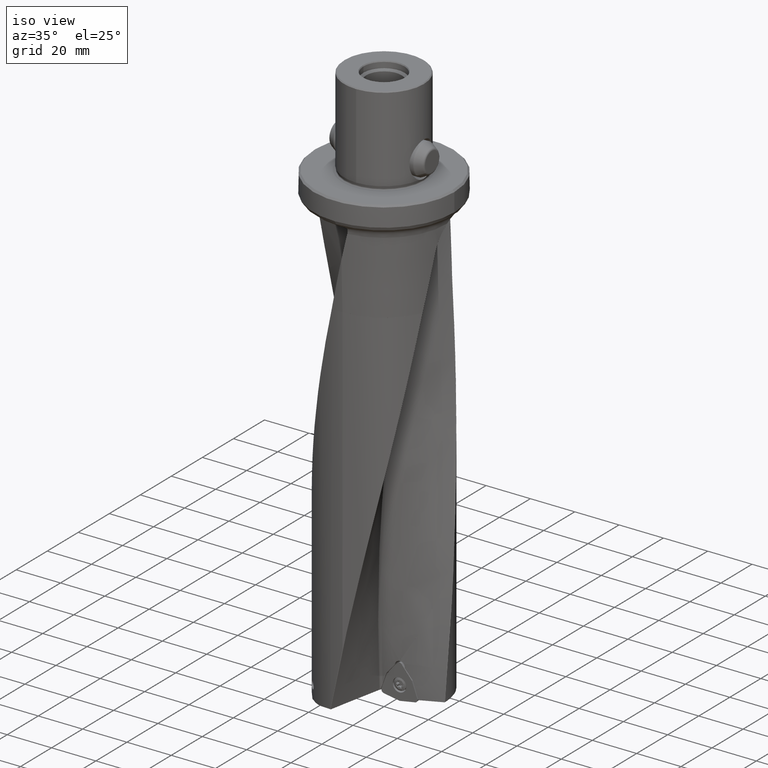
[diagram: clean part render]
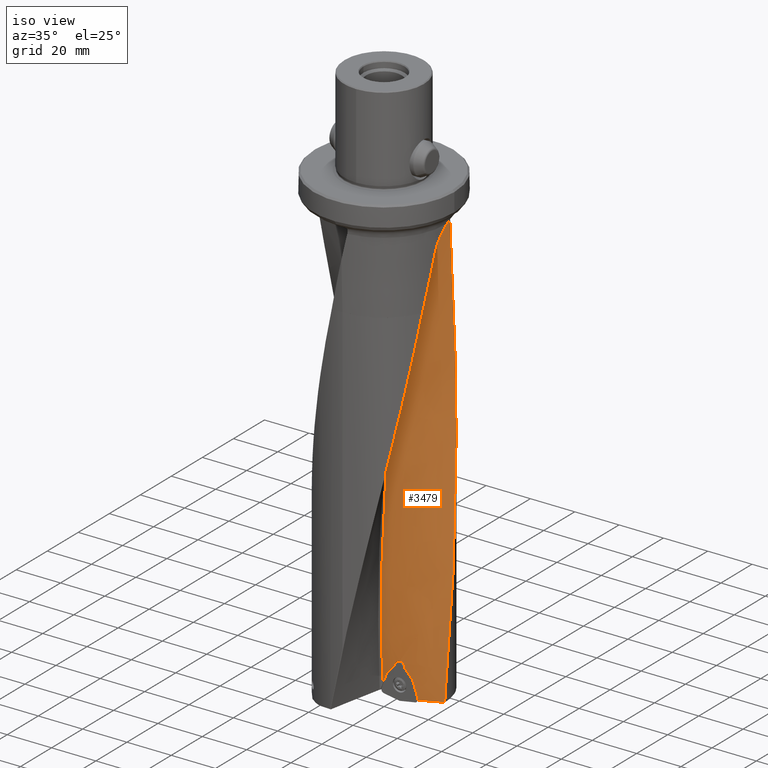
[diagram: same view with one face highlighted and labeled with its STEP entity id]
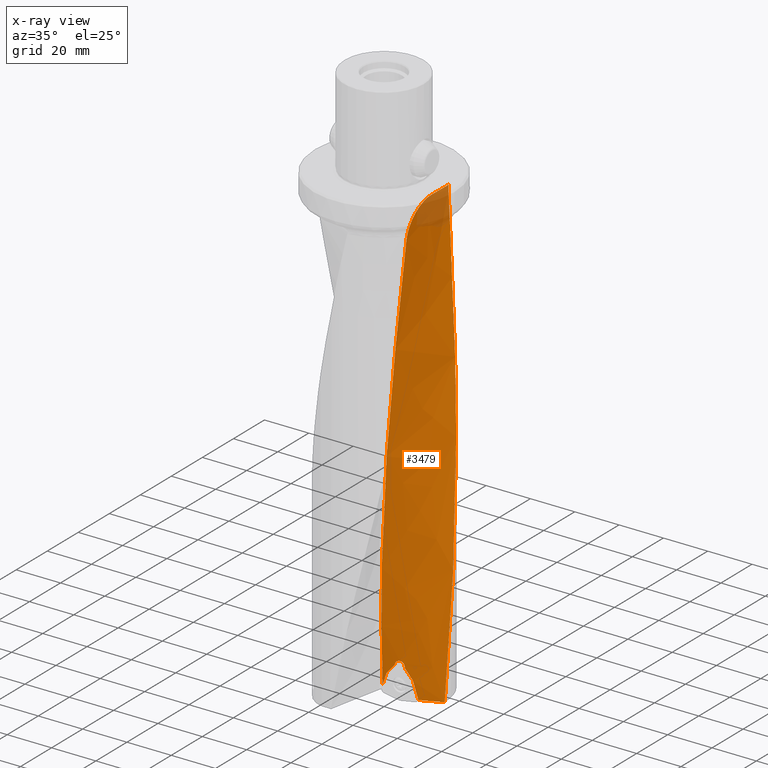
[diagram: x-ray of the same camera — body ghosted, the highlighted face saturated]
A machine part, iso view. The second image highlights one B-rep face of the part: STEP entity #3479.
The next image is the same camera in x-ray: the body ghosted, the highlighted face saturated — about 3% of this face is hidden behind the body in this view.
In plain terms, the highlighted face is a freeform B-spline surface patch.
Its self-contained STEP definition (entity closure, byte-faithful):
#2027=EDGE_CURVE('NONE',#3021,#3609,#5714,.T.);
#2069=VERTEX_POINT('NONE',#5761);
#2179=EDGE_CURVE('NONE',#2489,#2305,#5881,.T.);
#2181=EDGE_CURVE('NONE',#3959,#4489,#5883,.F.);
#2269=VERTEX_POINT('NONE',#5982);
#2271=VERTEX_POINT('NONE',#5984);
#2281=EDGE_CURVE('NONE',#2271,#2269,#5996,.T.);
#2289=EDGE_CURVE('NONE',#3387,#4959,#6005,.T.);
#2305=VERTEX_POINT('NONE',#6022);
#2405=VERTEX_POINT('NONE',#6135);
#2419=EDGE_CURVE('NONE',#4801,#4399,#6150,.T.);
#2489=VERTEX_POINT('NONE',#6230);
#2563=EDGE_CURVE('NONE',#2305,#3387,#6312,.T.);
#2597=VERTEX_POINT('NONE',#6348);
#3021=VERTEX_POINT('NONE',#6819);
#3283=EDGE_CURVE('NONE',#3021,#2597,#7107,.F.);
#3387=VERTEX_POINT('NONE',#7228);
#3479=ADVANCED_FACE('NONE',(#7331),#7332,.T.);
#3513=EDGE_CURVE('NONE',#4399,#5485,#7369,.T.);
#3609=VERTEX_POINT('NONE',#7476);
#3959=VERTEX_POINT('NONE',#7871);
#3997=EDGE_CURVE('NONE',#2069,#3959,#7916,.F.);
#4065=EDGE_CURVE('NONE',#4959,#2271,#7987,.T.);
#4399=VERTEX_POINT('NONE',#8359);
#4489=VERTEX_POINT('NONE',#8461);
#4653=EDGE_CURVE('NONE',#5485,#3609,#8641,.T.);
#4801=VERTEX_POINT('NONE',#8803);
#4887=EDGE_CURVE('NONE',#2405,#4801,#8892,.T.);
#4929=EDGE_CURVE('NONE',#5523,#2489,#8938,.T.);
#4959=VERTEX_POINT('NONE',#8971);
#5071=EDGE_CURVE('NONE',#2597,#2069,#9098,.F.);
#5183=EDGE_CURVE('NONE',#2269,#2405,#9216,.T.);
#5455=EDGE_CURVE('NONE',#4489,#5523,#9511,.T.);
#5485=VERTEX_POINT('NONE',#9545);
#5523=VERTEX_POINT('NONE',#9586);
#5714=B_SPLINE_CURVE_WITH_KNOTS('',3,(#9915,#9916,#9917,#9918),.UNSPECIFIED.,.F.,.F.,(4,4),(0.0,1.0),.UNSPECIFIED.);
#5761=CARTESIAN_POINT('',(11.0833075674687,25.9496007517363,-13.1441124296122));
#5881=B_SPLINE_CURVE_WITH_KNOTS('',3,(#12124,#12125,#12126,#12127),.UNSPECIFIED.,.F.,.F.,(4,4),(-7.908870839498,-0.0),.UNSPECIFIED.);
#5883=B_SPLINE_CURVE_WITH_KNOTS('',3,(#12130,#12131,#12132,#12133,#12134,#12135,#12136,#12137,#12138,#12139,#12140,#12141,#12142,#12143,#12144,#12145,#12146,#12147,#12148,#12149,#12150,#12151,#12152,#12153,#12154,#12155,#12156,#12157),.UNSPECIFIED.,.F.,.F.,(4,3,3,3,3,3,3,3,3,4),(0.0,0.108241011705706,0.215105744820897,0.322497392269704,0.430892144978745,0.539937289007166,0.648519939812303,0.765465777021655,0.882558074495116,1.0),.UNSPECIFIED.);
#5982=CARTESIAN_POINT('',(8.85899999999998,0.717707937650358,-201.244066980924));
#5984=CARTESIAN_POINT('',(8.85900000000002,0.721318846352794,-200.952));
#5996=B_SPLINE_CURVE_WITH_KNOTS('',3,(#14360,#14361,#14362,#14363),.UNSPECIFIED.,.F.,.F.,(4,4),(-1.89164675048848,-0.0),.UNSPECIFIED.);
#6005=B_SPLINE_CURVE_WITH_KNOTS('',3,(#14375,#14376,#14377,#14378),.UNSPECIFIED.,.F.,.F.,(4,4),(-1.61334370629193,-0.0),.UNSPECIFIED.);
#6022=CARTESIAN_POINT('',(4.66059680261063,0.288485906414086,-200.870121912663));
#6135=CARTESIAN_POINT('',(12.1795136902477,0.897949036497815,-205.238891119271));
#6150=B_SPLINE_CURVE_WITH_KNOTS('',3,(#16739,#16740,#16741,#16742),.UNSPECIFIED.,.F.,.F.,(4,4),(-9.28175704712737,-0.0),.UNSPECIFIED.);
#6230=CARTESIAN_POINT('',(1.00005128911202,0.124519303500337,-205.226410199313));
#6312=B_SPLINE_CURVE_WITH_KNOTS('',3,(#17693,#17694,#17695,#17696,#17697,#17698,#17699,#17700,#17701,#17702,#17703,#17704,#17705,#17706,#17707,#17708),.UNSPECIFIED.,.F.,.F.,(4,2,2,2,2,2,2,4),(-8.77520143033305,-8.76941186575353,-8.63026465893259,-8.38985561121521,-7.57535339503966,-6.79159754260903,-5.95624160990336,-5.53974882997168),.UNSPECIFIED.);
#6348=CARTESIAN_POINT('',(11.331510384114,25.4187026330048,-14.923855309831));
#6819=CARTESIAN_POINT('',(15.4703957824332,21.7250494780548,-47.9810260969592));
#7107=B_SPLINE_CURVE_WITH_KNOTS('',3,(#23846,#23847,#23848,#23849,#23850,#23851,#23852),.UNSPECIFIED.,.F.,.F.,(4,3,4),(0.0,0.278818768341143,1.0),.UNSPECIFIED.);
#7228=CARTESIAN_POINT('',(6.75900000000004,0.496945220008129,-198.852));
#7331=FACE_OUTER_BOUND('',#31935,.T.);
#7332=B_SPLINE_SURFACE_WITH_KNOTS('',1,3,((#31936,#31937,#31938,#31939,#31940,#31941,#31942,#31943,#31944,#31945,#31946,#31947,#31948),(#31949,#31950,#31951,#31952,#31953,#31954,#31955,#31956,#31957,#31958,#31959,#31960,#31961),(#31962,#31963,#31964,#31965,#31966,#31967,#31968,#31969,#31970,#31971,#31972,#31973,#31974),(#31975,#31976,#31977,#31978,#31979,#31980,#31981,#31982,#31983,#31984,#31985,#31986,#31987)),.UNSPECIFIED.,.F.,.F.,.F.,(2,1,1,2),(4,3,2,2,2,4),(0.0160888666090648,0.023933595161176,0.808406450372299,0.816251178924411),(-0.00267579768236858,0.00720041437335412,0.25,0.5,0.75,0.994821619945625),.UNSPECIFIED.);
#7369=B_SPLINE_CURVE_WITH_KNOTS('',3,(#32044,#32045,#32046,#32047),.UNSPECIFIED.,.F.,.F.,(4,4),(-12.9603689911601,-0.0),.UNSPECIFIED.);
#7476=CARTESIAN_POINT('',(15.4711958902947,21.7243282852983,-47.9880043482765));
#7871=CARTESIAN_POINT('',(10.9817410536692,15.0988886308401,-13.0611346503979));
#7916=B_SPLINE_CURVE_WITH_KNOTS('',3,(#41120,#41121,#41122,#41123),.UNSPECIFIED.,.F.,.F.,(4,4),(0.0,1.0),.UNSPECIFIED.);
#7987=B_SPLINE_CURVE_WITH_KNOTS('',3,(#41312,#41313,#41314,#41315,#41316,#41317,#41318,#41319,#41320,#41321,#41322,#41323,#41324,#41325,#41326,#41327,#41328,#41329),.UNSPECIFIED.,.F.,.F.,(4,2,2,2,2,2,2,2,4),(-5.51365401592162,-5.18391985771007,-4.41574027006875,-3.70923482890784,-3.07449252213521,-2.52266891946742,-2.32718133446084,-2.20002902035452,-2.19979353366822),.UNSPECIFIED.);
#8359=CARTESIAN_POINT('',(15.0361328317544,0.647471520558341,-212.664653471309));
#8461=CARTESIAN_POINT('',(10.1492695974686,-0.112473090887696,-26.4115120109053));
#8641=B_SPLINE_CURVE_WITH_KNOTS('',3,(#51951,#51952,#51953,#51954,#51955,#51956,#51957,#51958,#51959,#51960,#51961,#51962,#51963,#51964,#51965,#51966,#51967,#51968,#51969),.UNSPECIFIED.,.F.,.F.,(4,3,3,3,3,3,4),(0.0,0.0138864850162281,0.289231276298379,0.599946468605265,0.893808409353383,0.910609026740252,1.0),.UNSPECIFIED.);
#8803=CARTESIAN_POINT('',(12.5141724680153,0.897395734822925,-205.818880431242));
#8892=B_SPLINE_CURVE_WITH_KNOTS('',3,(#53541,#53542,#53543,#53544,#53545,#53546,#53547,#53548,#53549,#53550,#53551,#53552,#53553,#53554,#53555,#53556),.UNSPECIFIED.,.F.,.F.,(4,2,2,2,2,2,2,4),(-2.59791921683233,-1.8291834552718,-1.21745500505063,-0.571543684543293,-0.371157430352795,-0.248485738244714,-0.138427980286505,-0.0),.UNSPECIFIED.);
#8938=B_SPLINE_CURVE_WITH_KNOTS('',3,(#60471,#60472,#60473,#60474),.UNSPECIFIED.,.F.,.F.,(4,4),(-7.18438536220548,-0.0),.UNSPECIFIED.);
#8971=CARTESIAN_POINT('',(6.76100150651546,0.497183832354908,-198.852000953816));
#9098=B_SPLINE_CURVE_WITH_KNOTS('',3,(#62938,#62939,#62940,#62941,#62942,#62943,#62944),.UNSPECIFIED.,.F.,.F.,(4,3,4),(0.0,0.83238913678342,1.0),.UNSPECIFIED.);
#9216=B_SPLINE_CURVE_WITH_KNOTS('',3,(#63186,#63187,#63188,#63189),.UNSPECIFIED.,.F.,.F.,(4,4),(-7.41395017995128,-0.0),.UNSPECIFIED.);
#9511=B_SPLINE_CURVE_WITH_KNOTS('',3,(#75246,#75247,#75248,#75249,#75250,#75251,#75252,#75253,#75254,#75255,#75256,#75257,#75258,#75259,#75260,#75261,#75262,#75263,#75264,#75265,#75266,#75267,#75268,#75269,#75270,#75271,#75272,#75273,#75274,#75275,#75276,#75277,#75278,#75279,#75280,#75281,#75282,#75283,#75284,#75285),.UNSPECIFIED.,.F.,.F.,(4,3,3,3,3,3,3,3,3,3,3,3,3,4),(0.0,0.0450468219508399,0.0834875558621102,0.166933878929182,0.196764641212627,0.250343350460915,0.333719931176752,0.417067986103219,0.471718675930839,0.500390689615765,0.666975851417093,0.746426553268064,0.750246371623745,1.0),.UNSPECIFIED.);
#9545=CARTESIAN_POINT('',(26.6138657565638,1.08502726998848,-210.623186781228));
#9586=CARTESIAN_POINT('',(-0.828562506258406,0.315552003727129,-210.250485310997));
#9915=CARTESIAN_POINT('',(15.4703957824332,21.7250494780548,-47.9810260969592));
#9916=CARTESIAN_POINT('',(15.4706503000586,21.7247681868593,-47.9833490876455));
#9917=CARTESIAN_POINT('',(15.4709169965665,21.7245275225751,-47.9856756764485));
#9918=CARTESIAN_POINT('',(15.4711958902947,21.7243282852983,-47.9880043482765));
#12124=CARTESIAN_POINT('',(0.288094066314252,0.121487071941097,-206.073685803136));
#12125=CARTESIAN_POINT('',(1.98407271301773,0.117536718636061,-204.055360423545));
#12126=CARTESIAN_POINT('',(3.67953769955943,0.19342245589801,-202.037646333101));
#12127=CARTESIAN_POINT('',(5.37255402540842,0.349316721955669,-200.022846308841));
#12130=CARTESIAN_POINT('',(10.1492695974686,-0.112473090887696,-26.4115120109053));
#12131=CARTESIAN_POINT('',(10.1960646245058,-0.0464483678689936,-25.6112537844919));
#12132=CARTESIAN_POINT('',(10.2493074756786,0.0855382626872777,-24.8151655414403));
#12133=CARTESIAN_POINT('',(10.3047310197431,0.282972925131933,-24.0361984310721));
#12134=CARTESIAN_POINT('',(10.3594498564522,0.477897216556709,-23.2671358452444));
#12135=CARTESIAN_POINT('',(10.4162657937828,0.736618324237578,-22.5147604539312));
#12136=CARTESIAN_POINT('',(10.4715652919822,1.05679771700261,-21.789224098473));
#12137=CARTESIAN_POINT('',(10.5271374535514,1.37855580749568,-21.0601103653889));
#12138=CARTESIAN_POINT('',(10.5811447315524,1.76238235274844,-20.3580995550922));
#12139=CARTESIAN_POINT('',(10.630685306898,2.20276659061962,-19.6932578329949));
#12140=CARTESIAN_POINT('',(10.680688622251,2.64726429314123,-19.0222060727381));
#12141=CARTESIAN_POINT('',(10.7261243838209,3.14938230391868,-18.3890203736897));
#12142=CARTESIAN_POINT('',(10.7653090587295,3.70138319869106,-17.8024280183471));
#12143=CARTESIAN_POINT('',(10.8047288499309,4.25669621495712,-17.2123159854703));
#12144=CARTESIAN_POINT('',(10.8378220949956,4.8624926250376,-16.669357996698));
#12145=CARTESIAN_POINT('',(10.8643493018977,5.50879686628451,-16.1797934912848));
#12146=CARTESIAN_POINT('',(10.8907639989441,6.15235993703346,-15.6923053760505));
#12147=CARTESIAN_POINT('',(10.9106878418659,6.83608736060833,-15.2577590450305));
#12148=CARTESIAN_POINT('',(10.9252534414663,7.55007423579594,-14.8801967403555));
#12149=CARTESIAN_POINT('',(10.9409409037552,8.3190533706409,-14.4735540631735));
#12150=CARTESIAN_POINT('',(10.9504273110719,9.12313242701944,-14.1330113812449));
#12151=CARTESIAN_POINT('',(10.9564668100122,9.94951955061254,-13.8611128202281));
#12152=CARTESIAN_POINT('',(10.9625138726814,10.7769416223429,-13.5888737397366));
#12153=CARTESIAN_POINT('',(10.9651416945933,11.6267271708131,-13.3854499335582));
#12154=CARTESIAN_POINT('',(10.9680326082865,12.4877488037028,-13.2519020974771));
#12155=CARTESIAN_POINT('',(10.9709321540117,13.3513413768253,-13.1179554984711));
#12156=CARTESIAN_POINT('',(10.9741259037869,14.2262369107182,-13.0543017158826));
#12157=CARTESIAN_POINT('',(10.9817410536692,15.0988886308401,-13.0611346503979));
#14360=CARTESIAN_POINT('',(8.85900000000001,0.731212292224299,-200.152));
#14361=CARTESIAN_POINT('',(8.85900000000001,0.723416329506416,-200.782279342931));
#14362=CARTESIAN_POINT('',(8.85900000000001,0.715609607700338,-201.413671268814));
#14363=CARTESIAN_POINT('',(8.85900000000001,0.707819441228035,-202.044172061694));
#14375=CARTESIAN_POINT('',(5.95900000000002,0.40157372135652,-198.852));
#14376=CARTESIAN_POINT('',(6.49300000195391,0.465234188638434,-198.852));
#14377=CARTESIAN_POINT('',(7.0270000019539,0.528894672310099,-198.852));
#14378=CARTESIAN_POINT('',(7.56100000000001,0.592555172371515,-198.852));
#16739=CARTESIAN_POINT('',(12.1668171189755,0.911178595573096,-204.869120874682));
#16740=CARTESIAN_POINT('',(13.2357733053314,0.876529003130495,-207.7945111986));
#16741=CARTESIAN_POINT('',(14.3125053637313,0.769832837283458,-210.717265009421));
#16742=CARTESIAN_POINT('',(15.3879720949379,0.591808430942444,-213.612781111359));
#17693=CARTESIAN_POINT('',(4.66059680261063,0.288485906414086,-200.870121912663));
#17694=CARTESIAN_POINT('',(4.66067202631615,0.288453943124716,-200.868194050529));
#17695=CARTESIAN_POINT('',(4.66074990764533,0.288422259307366,-200.86626627023));
#17696=CARTESIAN_POINT('',(4.66276613024227,0.287636090324221,-200.818008134169));
#17697=CARTESIAN_POINT('',(4.66623592326839,0.287043436578035,-200.771752548607));
#17698=CARTESIAN_POINT('',(4.67987073669466,0.285885375748653,-200.64599143228));
#17699=CARTESIAN_POINT('',(4.69305878958297,0.285654781011161,-200.566893468321));
#17700=CARTESIAN_POINT('',(4.77061932277171,0.286962496863212,-200.223964754375));
#17701=CARTESIAN_POINT('',(4.88122946311309,0.294069170435756,-199.973481280042));
#17702=CARTESIAN_POINT('',(5.18550466365105,0.320458261870495,-199.537013207764));
#17703=CARTESIAN_POINT('',(5.37307189522091,0.339036333723418,-199.352963590958));
#17704=CARTESIAN_POINT('',(5.81951015221926,0.386998057633519,-199.053505157861));
#17705=CARTESIAN_POINT('',(6.07785490369251,0.416528319378348,-198.946364689362));
#17706=CARTESIAN_POINT('',(6.48445666272347,0.464272385413116,-198.865459696783));
#17707=CARTESIAN_POINT('',(6.62172794731785,0.480580416140148,-198.852));
#17708=CARTESIAN_POINT('',(6.75900000000004,0.496945220008129,-198.852));
#23846=CARTESIAN_POINT('',(11.331510384114,25.4187026330048,-14.923855309831));
#23847=CARTESIAN_POINT('',(11.7625958860906,25.1086403642254,-17.9937177797685));
#23848=CARTESIAN_POINT('',(12.1811275769746,24.7881406285316,-21.0642879610672));
#23849=CARTESIAN_POINT('',(12.5867779436202,24.458211162556,-24.1355456485878));
#23850=CARTESIAN_POINT('',(13.6360166042055,23.6048290891451,-32.0795352695368));
#23851=CARTESIAN_POINT('',(14.5990441622325,22.6881087700786,-40.0280773803494));
#23852=CARTESIAN_POINT('',(15.4703957824332,21.7250494780548,-47.9810260969592));
#31935=EDGE_LOOP('',(#77550,#77551,#77552,#77553,#77554,#77555,#77556,#77557,#77558,#77559,#77560,#77561,#77562,#77563,#77564,#77565,#77566));
#31936=CARTESIAN_POINT('',(-1.13685616997687,0.595233958649106,-214.660838562111));
#31937=CARTESIAN_POINT('',(-1.13217221816329,0.551725448632775,-213.995442351513));
#31938=CARTESIAN_POINT('',(-1.1274882663497,0.508216938616444,-213.330046140914));
#31939=CARTESIAN_POINT('',(-1.12280431453611,0.464708428600113,-212.664649930315));
#31940=CARTESIAN_POINT('',(-1.00765272068437,-0.60491706582989,-196.306361621053));
#31941=CARTESIAN_POINT('',(-0.503759261363604,-1.61656301623737,-179.948217415338));
#31942=CARTESIAN_POINT('',(1.13722616570921,-3.15250950026114,-146.746666666956));
#31943=CARTESIAN_POINT('',(2.29036099090393,-3.6582798808636,-129.903333333303));
#31944=CARTESIAN_POINT('',(4.86245813286774,-3.83607053534984,-96.2166666666972));
#31945=CARTESIAN_POINT('',(6.27791354004101,-3.50627390892731,-79.3733333331798));
#31946=CARTESIAN_POINT('',(8.8603258732061,-1.95775473574853,-46.0355513923472));
#31947=CARTESIAN_POINT('',(10.027972163832,-0.757572539991654,-29.5413962904045));
#31948=CARTESIAN_POINT('',(10.864478961598,0.792297348030193,-13.0466724152182));
#31949=CARTESIAN_POINT('',(-0.862265719846275,0.594080005858516,-214.660838480768));
#31950=CARTESIAN_POINT('',(-0.857597794749689,0.551991202188463,-213.995442326318));
#31951=CARTESIAN_POINT('',(-0.852929869653103,0.50990239851841,-213.330046171868));
#31952=CARTESIAN_POINT('',(-0.848261944556517,0.467813594848358,-212.664650017418));
#31953=CARTESIAN_POINT('',(-0.733504356040523,-0.566909437924981,-196.306363088537));
#31954=CARTESIAN_POINT('',(-0.236736100718521,-1.54373972643588,-179.948217415338));
#31955=CARTESIAN_POINT('',(1.37713776173021,-3.01423310344663,-146.746666666956));
#31956=CARTESIAN_POINT('',(2.50992191677964,-3.48954655383563,-129.903333333303));
#31957=CARTESIAN_POINT('',(5.03119145989562,-3.61650960947422,-96.2166666666972));
#31958=CARTESIAN_POINT('',(6.41618993685473,-3.26636231290646,-79.3733333331798));
#31959=CARTESIAN_POINT('',(8.93288059860099,-1.6906203320834,-46.0355513923472));
#31960=CARTESIAN_POINT('',(10.0654005786208,-0.483305962716769,-29.5413967217228));
#31961=CARTESIAN_POINT('',(10.866712329266,1.06685365136177,-13.0466724420205));
#31962=CARTESIAN_POINT('',(26.5967792932136,0.478684726799427,-214.660830346397));
#31963=CARTESIAN_POINT('',(26.59984454661,0.578566557757227,-213.995439806839));
#31964=CARTESIAN_POINT('',(26.6029098000064,0.678448388715026,-213.330049267281));
#31965=CARTESIAN_POINT('',(26.6059750534029,0.778330219672825,-212.664658727723));
#31966=CARTESIAN_POINT('',(26.6813321083439,3.23385335256587,-196.306509836931));
#31967=CARTESIAN_POINT('',(26.4655799637898,5.73858925371283,-179.948217415338));
#31968=CARTESIAN_POINT('',(25.36829736383,10.8134065780049,-146.746666666956));
#31969=CARTESIAN_POINT('',(24.4660145043507,13.3837861489615,-129.903333333303));
#31970=CARTESIAN_POINT('',(21.9045241626835,18.3395829780878,-96.2166666666972));
#31971=CARTESIAN_POINT('',(20.2438296182274,20.7247972891785,-79.3733333331798));
#31972=CARTESIAN_POINT('',(16.1883531380901,25.0228200344296,-46.0355513923472));
#31973=CARTESIAN_POINT('',(13.8082420574946,26.9433517647717,-29.5414398535473));
#31974=CARTESIAN_POINT('',(11.090049096064,28.5224839845198,-13.0466751222563));
#31975=CARTESIAN_POINT('',(26.8713697433442,0.477530774008837,-214.660830265053));
#31976=CARTESIAN_POINT('',(26.8744189700236,0.578832311312914,-213.995439781644));
#31977=CARTESIAN_POINT('',(26.877468196703,0.680133848616992,-213.330049298235));
#31978=CARTESIAN_POINT('',(26.8805174233825,0.78143538592107,-212.664658814826));
#31979=CARTESIAN_POINT('',(26.9554804729877,3.27186098047078,-196.306511304415));
#31980=CARTESIAN_POINT('',(26.7326031244349,5.81141254351431,-179.948217415338));
#31981=CARTESIAN_POINT('',(25.608208959851,10.9516829748194,-146.746666666956));
#31982=CARTESIAN_POINT('',(24.6855754302264,13.5525194759895,-129.903333333303));
#31983=CARTESIAN_POINT('',(22.0732574897114,18.5591439039634,-96.2166666666972));
#31984=CARTESIAN_POINT('',(20.3821060150411,20.9647088851994,-79.3733333331798));
#31985=CARTESIAN_POINT('',(16.260907863485,25.2899544380947,-46.0355513923472));
#31986=CARTESIAN_POINT('',(13.8456704722833,27.2176183420466,-29.5414402848656));
#31987=CARTESIAN_POINT('',(11.092282463732,28.7970402878513,-13.0466751490586));
#32044=CARTESIAN_POINT('',(14.1312506626235,0.628764047061125,-212.824208612089));
#32045=CARTESIAN_POINT('',(18.3878560313839,0.711491317572092,-212.073654239348));
#32046=CARTESIAN_POINT('',(22.6400805621233,0.868620246169855,-211.323872326548));
#32047=CARTESIAN_POINT('',(26.888471545204,1.09987126315816,-210.574766371632));
#41120=CARTESIAN_POINT('',(10.9817410536692,15.0988886308401,-13.0611346503979));
#41121=CARTESIAN_POINT('',(11.0132824868503,18.7158114396783,-13.0891051622876));
#41122=CARTESIAN_POINT('',(11.047177653455,22.3327154128742,-13.1168563940751));
#41123=CARTESIAN_POINT('',(11.0833075674687,25.9496007517363,-13.1441124296121));
#41312=CARTESIAN_POINT('',(6.7610015065175,0.497183832355152,-198.852000953817));
#41313=CARTESIAN_POINT('',(6.86969077379846,0.510141587365144,-198.852104545424));
#41314=CARTESIAN_POINT('',(6.97844492215657,0.523141849387659,-198.860646170046));
#41315=CARTESIAN_POINT('',(7.33748843019363,0.565962941574569,-198.917293664473));
#41316=CARTESIAN_POINT('',(7.57966308857433,0.594656254885675,-199.002272297795));
#41317=CARTESIAN_POINT('',(8.00436737992435,0.643381336523055,-199.244961835053));
#41318=CARTESIAN_POINT('',(8.18719941730081,0.663580533953477,-199.394615836056));
#41319=CARTESIAN_POINT('',(8.48036996432778,0.694079161393933,-199.730754605593));
#41320=CARTESIAN_POINT('',(8.59445125293633,0.705001985867926,-199.909970450277));
#41321=CARTESIAN_POINT('',(8.75417777016747,0.718507185486146,-200.27151852884));
#41322=CARTESIAN_POINT('',(8.80608223302047,0.721938873694014,-200.448729440215));
#41323=CARTESIAN_POINT('',(8.84421676838422,0.722955356336918,-200.694869196305));
#41324=CARTESIAN_POINT('',(8.85119026963962,0.722885014310142,-200.759685225888));
#41325=CARTESIAN_POINT('',(8.85770781514462,0.722236868158486,-200.867020760094));
#41326=CARTESIAN_POINT('',(8.85899523577958,0.721845220554987,-200.909388396655));
#41327=CARTESIAN_POINT('',(8.85899999560071,0.721320786623987,-200.951843038414));
#41328=CARTESIAN_POINT('',(8.85900000000002,0.721319816714011,-200.951921519226));
#41329=CARTESIAN_POINT('',(8.85900000000002,0.721318846352794,-200.952));
#51951=CARTESIAN_POINT('',(26.6138657569137,1.085027269998,-210.623186781228));
#51952=CARTESIAN_POINT('',(26.6094146286986,1.19801609070976,-209.870474904307));
#51953=CARTESIAN_POINT('',(26.6042400696928,1.31098195858172,-209.117763659757));
#51954=CARTESIAN_POINT('',(26.598343672363,1.42391421810867,-208.365053081964));
#51955=CARTESIAN_POINT('',(26.4814283917729,3.66316406370527,-193.440114431471));
#51956=CARTESIAN_POINT('',(26.0806027776688,5.88794151983349,-178.515227310451));
#51957=CARTESIAN_POINT('',(25.4086161830522,8.02504868323716,-163.59));
#51958=CARTESIAN_POINT('',(24.6503071444041,10.4366855991393,-146.747499176229));
#51959=CARTESIAN_POINT('',(23.5477825568644,12.7359339892696,-129.904469269755));
#51960=CARTESIAN_POINT('',(22.1515960797947,14.8280113098022,-113.06));
#51961=CARTESIAN_POINT('',(20.8311390247282,16.8066139556607,-97.1291779705665));
#51962=CARTESIAN_POINT('',(19.2486538237809,18.5998736618582,-81.1971988184782));
#51963=CARTESIAN_POINT('',(17.471250113377,20.1459550058051,-65.2629829032365));
#51964=CARTESIAN_POINT('',(17.3696327361676,20.2343472659341,-64.3519950282153));
#51965=CARTESIAN_POINT('',(17.267376790072,20.3219476784347,-63.440999391918));
#51966=CARTESIAN_POINT('',(17.1644913650359,20.4087423635524,-62.53));
#51967=CARTESIAN_POINT('',(16.61706932295,20.870550474397,-57.6828494216982));
#51968=CARTESIAN_POINT('',(16.0517712941071,21.3096077178878,-52.8355536112553));
#51969=CARTESIAN_POINT('',(15.4711958902947,21.7243282852983,-47.9880043482765));
#53541=CARTESIAN_POINT('',(11.3659507794853,0.86011023757179,-204.662047840841));
#53542=CARTESIAN_POINT('',(11.6055263799756,0.874887558678392,-204.751784967799));
#53543=CARTESIAN_POINT('',(11.8252915917863,0.886173768740686,-204.887839728138));
#53544=CARTESIAN_POINT('',(12.1616758890357,0.898297988617871,-205.201608354287));
#53545=CARTESIAN_POINT('',(12.288075087287,0.900733379259578,-205.363164150521));
#53546=CARTESIAN_POINT('',(12.4918054288971,0.89973558759477,-205.729546416564));
#53547=CARTESIAN_POINT('',(12.5645609095505,0.895979730995821,-205.933701640511));
#53548=CARTESIAN_POINT('',(12.6142478052263,0.88754367593478,-206.211262411608));
#53549=CARTESIAN_POINT('',(12.6226265492712,0.885295250261406,-206.277536517162));
#53550=CARTESIAN_POINT('',(12.6306232618757,0.881305339748628,-206.38485101292));
#53551=CARTESIAN_POINT('',(12.6323766523573,0.879706443799499,-206.425682825972));
#53552=CARTESIAN_POINT('',(12.6332642459922,0.876525483739726,-206.503188975197));
#53553=CARTESIAN_POINT('',(12.632649055425,0.87495923173429,-206.539843630597));
#53554=CARTESIAN_POINT('',(12.6289254127044,0.871293303765194,-206.622507213606));
#53555=CARTESIAN_POINT('',(12.6252163066341,0.869161359168239,-206.668465822993));
#53556=CARTESIAN_POINT('',(12.619879752991,0.866948968039235,-206.714245421084));
#60471=CARTESIAN_POINT('',(-1.10995140934619,0.357605990462844,-211.023594968316));
#60472=CARTESIAN_POINT('',(-0.292039651417637,0.230449774898661,-208.7764008823));
#60473=CARTESIAN_POINT('',(0.526986591710023,0.146024017643439,-206.526144773366));
#60474=CARTESIAN_POINT('',(1.34593098374117,0.104391817881377,-204.276113548472));
#62938=CARTESIAN_POINT('',(11.0833075674687,25.9496007517363,-13.1441124296121));
#62939=CARTESIAN_POINT('',(11.1484619838143,25.7133101174656,-13.6059099410078));
#62940=CARTESIAN_POINT('',(11.216859395237,25.5449249110888,-14.1027147863042));
#62941=CARTESIAN_POINT('',(11.2881288479163,25.46005211752,-14.6137750803061));
#62942=CARTESIAN_POINT('',(11.3024797493837,25.442962031207,-14.7166827868679));
#62943=CARTESIAN_POINT('',(11.3169435139999,25.4291799921462,-14.8201211601212));
#62944=CARTESIAN_POINT('',(11.331510384114,25.4187026330048,-14.923855309831));
#63186=CARTESIAN_POINT('',(8.1540337313053,0.652752505483677,-200.391205651417));
#63187=CARTESIAN_POINT('',(9.7245128030194,0.807966995959529,-202.293020579168));
#63188=CARTESIAN_POINT('',(11.3034051129471,0.893643975624978,-204.192540288158));
#63189=CARTESIAN_POINT('',(12.8891649585674,0.909850245609383,-206.08793191847));
#75246=CARTESIAN_POINT('',(10.1492695974686,-0.112473090887696,-26.4115120109053));
#75247=CARTESIAN_POINT('',(9.98815966840189,-0.340042326015254,-29.1661297036121));
#75248=CARTESIAN_POINT('',(9.81876384093988,-0.561327427583725,-31.9208078349836));
#75249=CARTESIAN_POINT('',(9.64361681130258,-0.766355173732139,-34.6763921127379));
#75250=CARTESIAN_POINT('',(9.49415498314112,-0.941315730166503,-37.0278716934024));
#75251=CARTESIAN_POINT('',(9.34005937196904,-1.10810897191543,-39.3796736895354));
#75252=CARTESIAN_POINT('',(9.18147275707483,-1.26846651066606,-41.7315872520391));
#75253=CARTESIAN_POINT('',(8.8372163250535,-1.61656722632129,-46.8370709146434));
#75254=CARTESIAN_POINT('',(8.47330146633214,-1.92701702150518,-51.943761890378));
#75255=CARTESIAN_POINT('',(8.09627829320928,-2.1972097601096,-57.0516207647714));
#75256=CARTESIAN_POINT('',(7.9614983743417,-2.29379946064731,-58.8776008470447));
#75257=CARTESIAN_POINT('',(7.82504073374991,-2.38525578075371,-60.7037294956325));
#75258=CARTESIAN_POINT('',(7.68717373846189,-2.47152638544025,-62.53));
#75259=CARTESIAN_POINT('',(7.4395523205013,-2.6264760847223,-65.8101446852914));
#75260=CARTESIAN_POINT('',(7.187520069264,-2.76470818683801,-69.090738425398));
#75261=CARTESIAN_POINT('',(6.932928738678,-2.88620684734475,-72.3717540408334));
#75262=CARTESIAN_POINT('',(6.53674609594601,-3.07527715188798,-77.4775109194207));
#75263=CARTESIAN_POINT('',(6.13442434442011,-3.22377551463484,-82.5842816050848));
#75264=CARTESIAN_POINT('',(5.73244636637749,-3.33286293078843,-87.6919177095311));
#75265=CARTESIAN_POINT('',(5.33060591783096,-3.44191302465524,-92.7978063286471));
#75266=CARTESIAN_POINT('',(4.9290942341683,-3.51155687464877,-97.9045583427655));
#75267=CARTESIAN_POINT('',(4.53473735126701,-3.54243619451874,-103.012098837909));
#75268=CARTESIAN_POINT('',(4.27616052295542,-3.56268353122973,-106.361074547401));
#75269=CARTESIAN_POINT('',(4.02065946408703,-3.56628298830938,-109.710387750692));
#75270=CARTESIAN_POINT('',(3.76993513710052,-3.55364963289204,-113.06));
#75271=CARTESIAN_POINT('',(3.63839477855837,-3.5470216517896,-114.81734521475));
#75272=CARTESIAN_POINT('',(3.50820619767005,-3.53594240836736,-116.574773106196));
#75273=CARTESIAN_POINT('',(3.37962911271004,-3.52052317253361,-118.332280489799));
#75274=CARTESIAN_POINT('',(2.63259283066233,-3.43093700239417,-128.543445114712));
#75275=CARTESIAN_POINT('',(1.93994454042868,-3.19498045669296,-138.757236552077));
#75276=CARTESIAN_POINT('',(1.34270871709385,-2.84458758579127,-148.972639557461));
#75277=CARTESIAN_POINT('',(1.05786458799258,-2.67747210434211,-153.844747791423));
#75278=CARTESIAN_POINT('',(0.794792274997179,-2.48427462729537,-158.71723780542));
#75279=CARTESIAN_POINT('',(0.55795869959824,-2.26843068029795,-163.59));
#75280=CARTESIAN_POINT('',(0.546572252185261,-2.25805336894015,-163.8242718949));
#75281=CARTESIAN_POINT('',(0.535247005592796,-2.24762427001586,-164.058544444788));
#75282=CARTESIAN_POINT('',(0.523983252950294,-2.23714393525334,-164.292817657476));
#75283=CARTESIAN_POINT('',(-0.212481895297854,-1.55190149966875,-179.610453066269));
#75284=CARTESIAN_POINT('',(-0.686284433014617,-0.647701300708869,-194.930898907324));
#75285=CARTESIAN_POINT('',(-0.828562506258406,0.315552003727126,-210.250485310997));
#77550=ORIENTED_EDGE('',*,*,#3283,.T.);
#77551=ORIENTED_EDGE('',*,*,#5071,.T.);
#77552=ORIENTED_EDGE('',*,*,#3997,.T.);
#77553=ORIENTED_EDGE('',*,*,#2181,.T.);
#77554=ORIENTED_EDGE('',*,*,#5455,.T.);
#77555=ORIENTED_EDGE('',*,*,#4929,.T.);
#77556=ORIENTED_EDGE('',*,*,#2179,.T.);
#77557=ORIENTED_EDGE('',*,*,#2563,.T.);
#77558=ORIENTED_EDGE('',*,*,#2289,.T.);
#77559=ORIENTED_EDGE('',*,*,#4065,.T.);
#77560=ORIENTED_EDGE('',*,*,#2281,.T.);
#77561=ORIENTED_EDGE('',*,*,#5183,.T.);
#77562=ORIENTED_EDGE('',*,*,#4887,.T.);
#77563=ORIENTED_EDGE('',*,*,#2419,.T.);
#77564=ORIENTED_EDGE('',*,*,#3513,.T.);
#77565=ORIENTED_EDGE('',*,*,#4653,.T.);
#77566=ORIENTED_EDGE('',*,*,#2027,.F.);